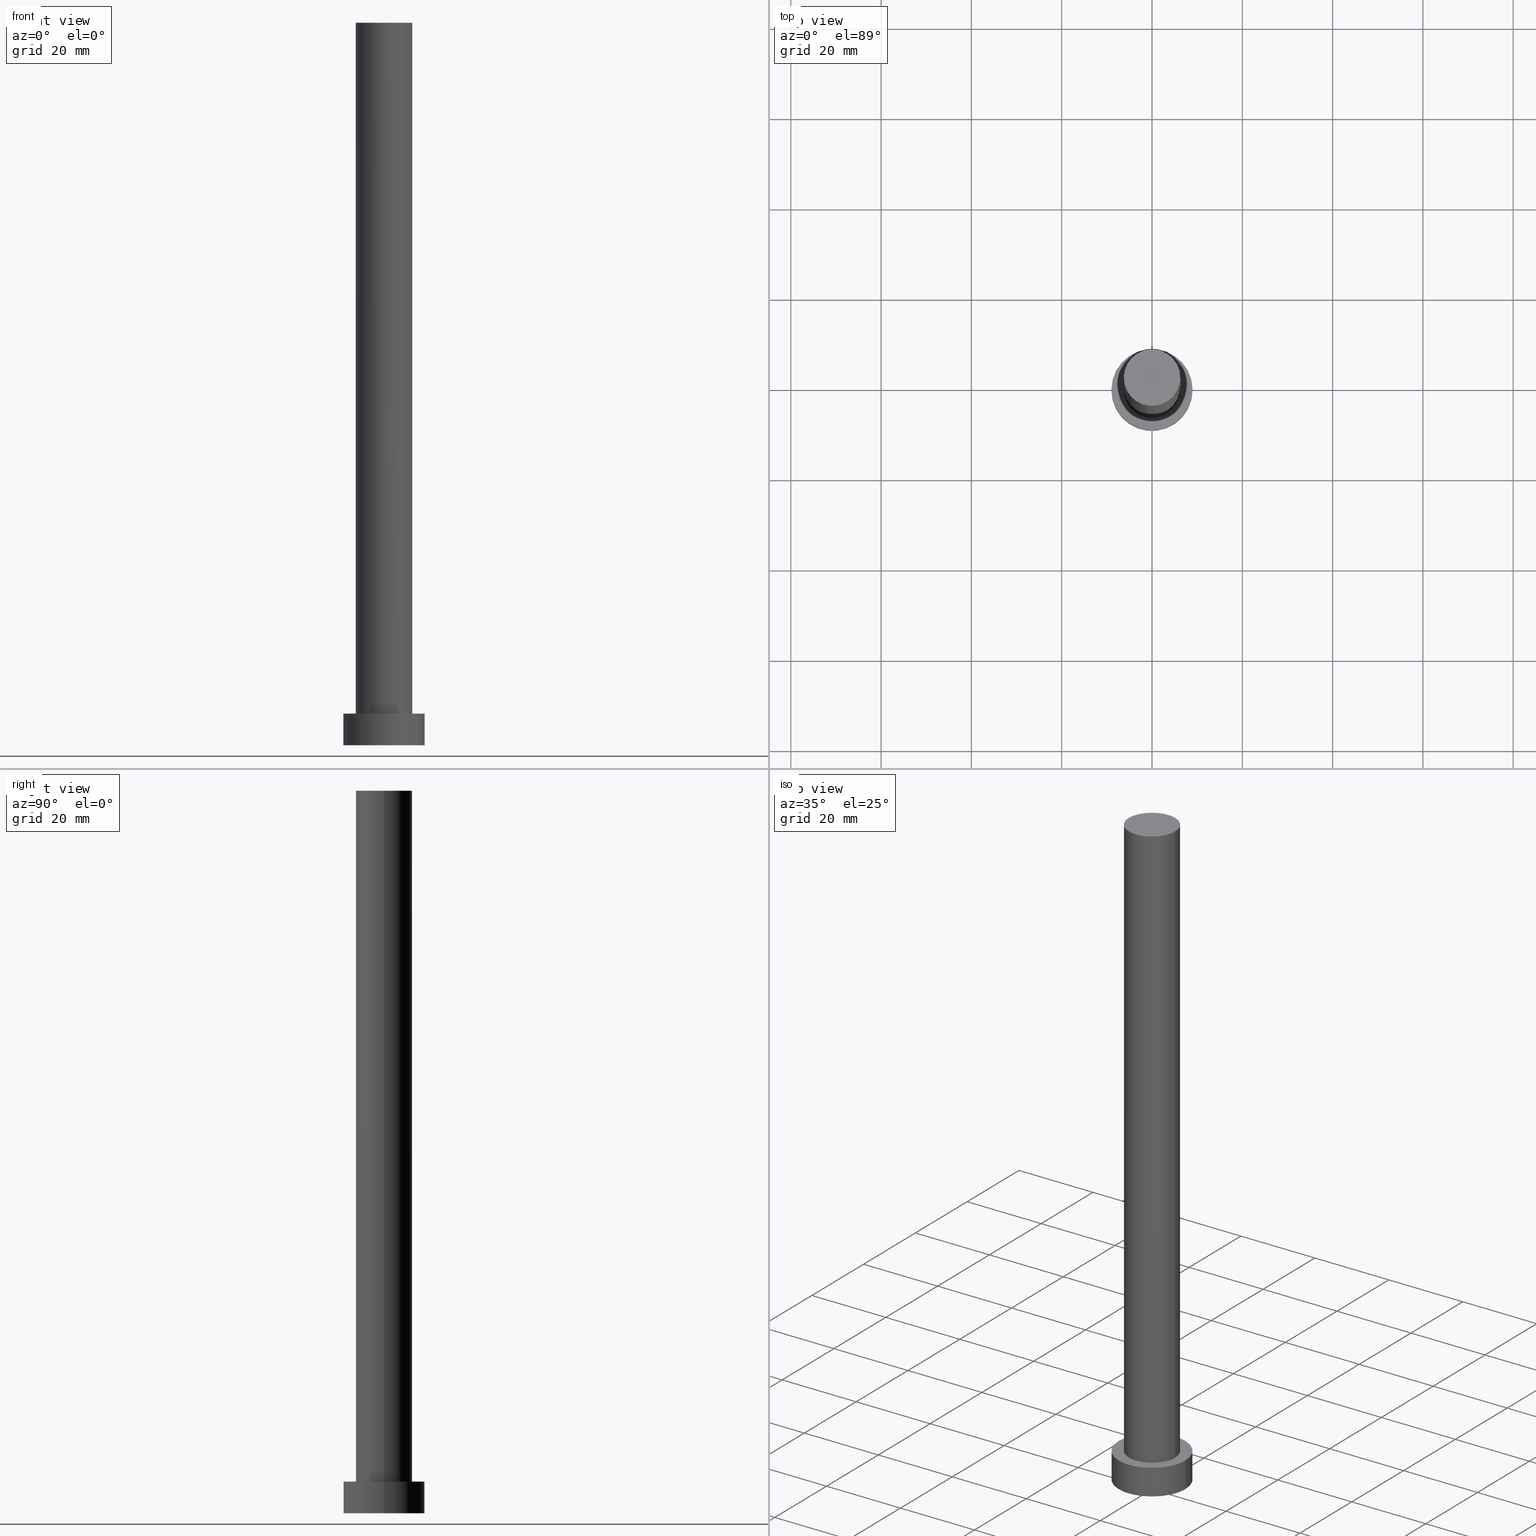
[diagram: canonical four-view strip — front | top / right | iso, engineering-drawing reading convention]
A machine part, canonical four-view strip (front | top / right | iso — engineering-drawing reading convention). The complete STEP part file that produces these views, byte-faithful:
ISO-10303-21;
HEADER;
FILE_DESCRIPTION (( 'STEP AP203' ),
    '1' );
FILE_NAME ('2bb6.STEP',
    '2026-02-06T12:36:27',
    ( '' ),
    ( '' ),
    'SwSTEP 2.0',
    'SolidWorks 2019',
    '' );
FILE_SCHEMA (( 'CONFIG_CONTROL_DESIGN' ));
ENDSEC;

DATA;
#1 = SHAPE_DEFINITION_REPRESENTATION ( #143, #161 ) ;
#2 = CARTESIAN_POINT ( 'NONE',  ( 0.000000000000000000, 0.000000000000000000, 7.000000000000000000 ) ) ;
#3 = CARTESIAN_POINT ( 'NONE',  ( 6.250000000000000000, 7.654042494670957606E-16, 160.0000000000000000 ) ) ;
#4 = PERSON_AND_ORGANIZATION ( #248, #204 ) ;
#5 = DATE_AND_TIME ( #124, #162 ) ;
#6 = APPLICATION_PROTOCOL_DEFINITION ( 'international standard', 'config_control_design', 1994, #69 ) ;
#7 = PERSON_AND_ORGANIZATION ( #248, #204 ) ;
#8 = ORIENTED_EDGE ( 'NONE', *, *, #217, .F. ) ;
#9 = DATE_AND_TIME ( #177, #68 ) ;
#10 = CYLINDRICAL_SURFACE ( 'NONE', #90, 6.250000000000000000 ) ;
#11 = ADVANCED_FACE ( 'NONE', ( #65 ), #10, .T. ) ;
#12 = FACE_OUTER_BOUND ( 'NONE', #245, .T. ) ;
#13 = CC_DESIGN_PERSON_AND_ORGANIZATION_ASSIGNMENT ( #93, #18, ( #39 ) ) ;
#14 = CARTESIAN_POINT ( 'NONE',  ( -9.000000000000000000, 0.000000000000000000, 7.000000000000000000 ) ) ;
#15 = CARTESIAN_POINT ( 'NONE',  ( 0.000000000000000000, 0.000000000000000000, 7.000000000000000000 ) ) ;
#16 = CALENDAR_DATE ( 2026, 6, 2 ) ;
#17 = DIRECTION ( 'NONE',  ( 1.000000000000000000, 0.000000000000000000, 0.000000000000000000 ) ) ;
#18 = PERSON_AND_ORGANIZATION_ROLE ( 'design_supplier' ) ;
#19 = CARTESIAN_POINT ( 'NONE',  ( 0.000000000000000000, 0.000000000000000000, 7.000000000000000000 ) ) ;
#20 = AXIS2_PLACEMENT_3D ( 'NONE', #142, #197, #242 ) ;
#21 = ORIENTED_EDGE ( 'NONE', *, *, #217, .T. ) ;
#22 = CARTESIAN_POINT ( 'NONE',  ( -6.250000000000000000, 0.000000000000000000, 160.0000000000000000 ) ) ;
#23 = ORIENTED_EDGE ( 'NONE', *, *, #250, .F. ) ;
#24 = CARTESIAN_POINT ( 'NONE',  ( 0.000000000000000000, 0.000000000000000000, 0.000000000000000000 ) ) ;
#25 = CIRCLE ( 'NONE', #55, 6.250000000000000000 ) ;
#26 = ORIENTED_EDGE ( 'NONE', *, *, #128, .F. ) ;
#27 = CIRCLE ( 'NONE', #173, 6.250000000000000000 ) ;
#28 = PLANE ( 'NONE',  #196 ) ;
#29 = CC_DESIGN_PERSON_AND_ORGANIZATION_ASSIGNMENT ( #238, #218, ( #183 ) ) ;
#30 = LINE ( 'NONE', #251, #45 ) ;
#31 = CARTESIAN_POINT ( 'NONE',  ( 0.000000000000000000, 0.000000000000000000, 7.000000000000000000 ) ) ;
#32 = DATE_AND_TIME ( #214, #139 ) ;
#33 = LINE ( 'NONE', #193, #123 ) ;
#34 = DIRECTION ( 'NONE',  ( 0.000000000000000000, 0.000000000000000000, 1.000000000000000000 ) ) ;
#35 = EDGE_CURVE ( 'NONE', #121, #222, #159, .T. ) ;
#36 = ORIENTED_EDGE ( 'NONE', *, *, #205, .F. ) ;
#37 = APPROVAL_STATUS ( 'not_yet_approved' ) ;
#38 = UNCERTAINTY_MEASURE_WITH_UNIT (LENGTH_MEASURE( 1.000000000000000082E-05 ), #63, 'distance_accuracy_value', 'NONE');
#39 = PRODUCT_DEFINITION_FORMATION_WITH_SPECIFIED_SOURCE ( 'LIBOVOLN�', '', #83, .NOT_KNOWN. ) ;
#40 = MECHANICAL_CONTEXT ( 'NONE', #69, 'mechanical' ) ;
#41 = DIRECTION ( 'NONE',  ( -1.000000000000000000, 0.000000000000000000, 0.000000000000000000 ) ) ;
#42 = ORIENTED_EDGE ( 'NONE', *, *, #52, .F. ) ;
#43 =( NAMED_UNIT ( * ) SI_UNIT ( $, .STERADIAN. ) SOLID_ANGLE_UNIT ( ) );
#44 = ORIENTED_EDGE ( 'NONE', *, *, #35, .F. ) ;
#45 = VECTOR ( 'NONE', #73, 1000.000000000000000 ) ;
#46 = LOCAL_TIME ( 13, 36, 27.00000000000000000, #116 ) ;
#47 = CC_DESIGN_DATE_AND_TIME_ASSIGNMENT ( #32, #137, ( #183 ) ) ;
#48 = DIRECTION ( 'NONE',  ( 0.000000000000000000, 0.000000000000000000, 1.000000000000000000 ) ) ;
#49 = DIRECTION ( 'NONE',  ( -1.000000000000000000, 0.000000000000000000, 0.000000000000000000 ) ) ;
#50 = DIRECTION ( 'NONE',  ( 0.000000000000000000, 0.000000000000000000, 1.000000000000000000 ) ) ;
#51 = CC_DESIGN_APPROVAL ( #60, ( #88 ) ) ;
#52 = EDGE_CURVE ( 'NONE', #121, #125, #112, .T. ) ;
#53 = COORDINATED_UNIVERSAL_TIME_OFFSET ( 1, 0, .AHEAD. ) ;
#54 = FACE_OUTER_BOUND ( 'NONE', #80, .T. ) ;
#55 = AXIS2_PLACEMENT_3D ( 'NONE', #148, #34, #129 ) ;
#56 = ORIENTED_EDGE ( 'NONE', *, *, #186, .F. ) ;
#57 = APPROVAL_ROLE ( '' ) ;
#58 = DIRECTION ( 'NONE',  ( 1.000000000000000000, 0.000000000000000000, -0.000000000000000000 ) ) ;
#59 = DIRECTION ( 'NONE',  ( 0.000000000000000000, 0.000000000000000000, 1.000000000000000000 ) ) ;
#60 = APPROVAL ( #101, 'NEUR�EN�' ) ;
#61 = ORIENTED_EDGE ( 'NONE', *, *, #250, .T. ) ;
#62 = ORIENTED_EDGE ( 'NONE', *, *, #75, .F. ) ;
#63 =( LENGTH_UNIT ( ) NAMED_UNIT ( * ) SI_UNIT ( .MILLI., .METRE. ) );
#64 = ORIENTED_EDGE ( 'NONE', *, *, #182, .F. ) ;
#65 = FACE_OUTER_BOUND ( 'NONE', #78, .T. ) ;
#66 = VECTOR ( 'NONE', #92, 1000.000000000000000 ) ;
#67 = ORIENTED_EDGE ( 'NONE', *, *, #79, .F. ) ;
#68 = LOCAL_TIME ( 13, 36, 27.00000000000000000, #103 ) ;
#69 = APPLICATION_CONTEXT ( 'configuration controlled 3d designs of mechanical parts and assemblies' ) ;
#70 = DIRECTION ( 'NONE',  ( 0.000000000000000000, 0.000000000000000000, 1.000000000000000000 ) ) ;
#71 = DIRECTION ( 'NONE',  ( 0.000000000000000000, 0.000000000000000000, 1.000000000000000000 ) ) ;
#72 = DIRECTION ( 'NONE',  ( 1.000000000000000000, 0.000000000000000000, 0.000000000000000000 ) ) ;
#73 = DIRECTION ( 'NONE',  ( -0.000000000000000000, -0.000000000000000000, -1.000000000000000000 ) ) ;
#74 = VERTEX_POINT ( 'NONE', #189 ) ;
#75 = EDGE_CURVE ( 'NONE', #200, #74, #33, .T. ) ;
#76 = SECURITY_CLASSIFICATION_LEVEL ( 'unclassified' ) ;
#77 = PLANE ( 'NONE',  #221 ) ;
#78 = EDGE_LOOP ( 'NONE', ( #115, #155, #141, #26 ) ) ;
#79 = EDGE_CURVE ( 'NONE', #74, #195, #223, .T. ) ;
#80 = EDGE_LOOP ( 'NONE', ( #21, #144 ) ) ;
#81 = CARTESIAN_POINT ( 'NONE',  ( 0.000000000000000000, 0.000000000000000000, 7.000000000000000000 ) ) ;
#82 = EDGE_LOOP ( 'NONE', ( #44, #179, #172, #240 ) ) ;
#83 = PRODUCT ( '2bb6', '2bb6', '', ( #40 ) ) ;
#84 = DATE_AND_TIME ( #16, #97 ) ;
#85 = DIRECTION ( 'NONE',  ( 1.000000000000000000, 0.000000000000000000, 0.000000000000000000 ) ) ;
#86 = FACE_OUTER_BOUND ( 'NONE', #82, .T. ) ;
#87 = EDGE_CURVE ( 'NONE', #200, #243, #25, .T. ) ;
#88 = PRODUCT_DEFINITION ( 'NEZN�M�', '', #39, #122 ) ;
#89 = CC_DESIGN_APPROVAL ( #206, ( #39 ) ) ;
#90 = AXIS2_PLACEMENT_3D ( 'NONE', #105, #199, #201 ) ;
#91 = CARTESIAN_POINT ( 'NONE',  ( 0.000000000000000000, 0.000000000000000000, 0.000000000000000000 ) ) ;
#92 = DIRECTION ( 'NONE',  ( -0.000000000000000000, -0.000000000000000000, -1.000000000000000000 ) ) ;
#93 = PERSON_AND_ORGANIZATION ( #248, #204 ) ;
#94 = CARTESIAN_POINT ( 'NONE',  ( -6.250000000000000000, 0.000000000000000000, 7.000000000000000000 ) ) ;
#95 = PERSON_AND_ORGANIZATION_ROLE ( 'creator' ) ;
#96 = DIRECTION ( 'NONE',  ( 1.000000000000000000, 0.000000000000000000, 0.000000000000000000 ) ) ;
#97 = LOCAL_TIME ( 13, 36, 27.00000000000000000, #135 ) ;
#98 = DIRECTION ( 'NONE',  ( 0.000000000000000000, 0.000000000000000000, 1.000000000000000000 ) ) ;
#99 = CC_DESIGN_PERSON_AND_ORGANIZATION_ASSIGNMENT ( #126, #202, ( #88 ) ) ;
#100 = AXIS2_PLACEMENT_3D ( 'NONE', #212, #163, #153 ) ;
#101 = APPROVAL_STATUS ( 'not_yet_approved' ) ;
#102 = ORIENTED_EDGE ( 'NONE', *, *, #158, .T. ) ;
#103 = COORDINATED_UNIVERSAL_TIME_OFFSET ( 1, 0, .AHEAD. ) ;
#104 = APPROVAL_PERSON_ORGANIZATION ( #157, #60, #119 ) ;
#105 = CARTESIAN_POINT ( 'NONE',  ( 0.000000000000000000, 0.000000000000000000, 160.0000000000000000 ) ) ;
#106 = ADVANCED_FACE ( 'NONE', ( #215 ), #134, .T. ) ;
#107 = EDGE_LOOP ( 'NONE', ( #102, #241 ) ) ;
#108 = APPLICATION_CONTEXT ( 'configuration controlled 3d designs of mechanical parts and assemblies' ) ;
#109 = CARTESIAN_POINT ( 'NONE',  ( 0.000000000000000000, 0.000000000000000000, 7.000000000000000000 ) ) ;
#110 = CARTESIAN_POINT ( 'NONE',  ( 0.000000000000000000, 0.000000000000000000, 160.0000000000000000 ) ) ;
#111 = DIRECTION ( 'NONE',  ( 0.000000000000000000, 0.000000000000000000, 1.000000000000000000 ) ) ;
#112 = CIRCLE ( 'NONE', #232, 9.000000000000000000 ) ;
#113 = APPROVAL_STATUS ( 'not_yet_approved' ) ;
#114 = DIRECTION ( 'NONE',  ( -0.000000000000000000, -0.000000000000000000, -1.000000000000000000 ) ) ;
#115 = ORIENTED_EDGE ( 'NONE', *, *, #87, .F. ) ;
#116 = COORDINATED_UNIVERSAL_TIME_OFFSET ( 1, 0, .AHEAD. ) ;
#117 = CARTESIAN_POINT ( 'NONE',  ( -9.000000000000000000, 0.000000000000000000, 7.000000000000000000 ) ) ;
#118 = CALENDAR_DATE ( 2026, 6, 2 ) ;
#119 = APPROVAL_ROLE ( '' ) ;
#120 = ORIENTED_EDGE ( 'NONE', *, *, #128, .T. ) ;
#121 = VERTEX_POINT ( 'NONE', #231 ) ;
#122 = DESIGN_CONTEXT ( 'detailed design', #108, 'design' ) ;
#123 = VECTOR ( 'NONE', #131, 1000.000000000000000 ) ;
#124 = CALENDAR_DATE ( 2026, 6, 2 ) ;
#125 = VERTEX_POINT ( 'NONE', #117 ) ;
#126 = PERSON_AND_ORGANIZATION ( #248, #204 ) ;
#127 = CC_DESIGN_DATE_AND_TIME_ASSIGNMENT ( #9, #133, ( #88 ) ) ;
#128 = EDGE_CURVE ( 'NONE', #243, #195, #30, .T. ) ;
#129 = DIRECTION ( 'NONE',  ( 1.000000000000000000, 0.000000000000000000, 0.000000000000000000 ) ) ;
#130 = CIRCLE ( 'NONE', #209, 6.250000000000000000 ) ;
#131 = DIRECTION ( 'NONE',  ( -0.000000000000000000, -0.000000000000000000, -1.000000000000000000 ) ) ;
#132 = CC_DESIGN_PERSON_AND_ORGANIZATION_ASSIGNMENT ( #235, #95, ( #39 ) ) ;
#133 = DATE_TIME_ROLE ( 'creation_date' ) ;
#134 = CYLINDRICAL_SURFACE ( 'NONE', #187, 9.000000000000000000 ) ;
#135 = COORDINATED_UNIVERSAL_TIME_OFFSET ( 1, 0, .AHEAD. ) ;
#136 = CARTESIAN_POINT ( 'NONE',  ( 9.000000000000000000, 1.102182119232617714E-15, 0.000000000000000000 ) ) ;
#137 = DATE_TIME_ROLE ( 'classification_date' ) ;
#138 = FACE_OUTER_BOUND ( 'NONE', #181, .T. ) ;
#139 = LOCAL_TIME ( 13, 36, 27.00000000000000000, #53 ) ;
#140 = APPROVAL_DATE_TIME ( #84, #206 ) ;
#141 = ORIENTED_EDGE ( 'NONE', *, *, #79, .T. ) ;
#142 = CARTESIAN_POINT ( 'NONE',  ( 0.000000000000000000, 0.000000000000000000, 0.000000000000000000 ) ) ;
#143 = PRODUCT_DEFINITION_SHAPE ( 'NONE', 'NONE',  #88 ) ;
#144 = ORIENTED_EDGE ( 'NONE', *, *, #87, .T. ) ;
#145 = APPROVAL_PERSON_ORGANIZATION ( #4, #228, #57 ) ;
#146 = AXIS2_PLACEMENT_3D ( 'NONE', #2, #98, #72 ) ;
#147 = CC_DESIGN_PERSON_AND_ORGANIZATION_ASSIGNMENT ( #7, #175, ( #83 ) ) ;
#148 = CARTESIAN_POINT ( 'NONE',  ( 0.000000000000000000, 0.000000000000000000, 160.0000000000000000 ) ) ;
#149 = CIRCLE ( 'NONE', #146, 9.000000000000000000 ) ;
#150 = DIRECTION ( 'NONE',  ( 1.000000000000000000, 0.000000000000000000, -0.000000000000000000 ) ) ;
#151 = PERSON_AND_ORGANIZATION ( #248, #204 ) ;
#152 = DIRECTION ( 'NONE',  ( -0.000000000000000000, -0.000000000000000000, -1.000000000000000000 ) ) ;
#153 = DIRECTION ( 'NONE',  ( 1.000000000000000000, 0.000000000000000000, 0.000000000000000000 ) ) ;
#154 = DIRECTION ( 'NONE',  ( -0.000000000000000000, -0.000000000000000000, -1.000000000000000000 ) ) ;
#155 = ORIENTED_EDGE ( 'NONE', *, *, #75, .T. ) ;
#156 = DIRECTION ( 'NONE',  ( -0.000000000000000000, -0.000000000000000000, -1.000000000000000000 ) ) ;
#157 = PERSON_AND_ORGANIZATION ( #248, #204 ) ;
#158 = EDGE_CURVE ( 'NONE', #125, #121, #149, .T. ) ;
#159 = LINE ( 'NONE', #171, #237 ) ;
#160 = MANIFOLD_SOLID_BREP ( 'P�idat vysunut�m3', #252 ) ;
#161 = ADVANCED_BREP_SHAPE_REPRESENTATION ( '2bb6', ( #160, #178 ), #247 ) ;
#162 = LOCAL_TIME ( 13, 36, 27.00000000000000000, #224 ) ;
#163 = DIRECTION ( 'NONE',  ( 0.000000000000000000, 0.000000000000000000, 1.000000000000000000 ) ) ;
#164 = AXIS2_PLACEMENT_3D ( 'NONE', #188, #154, #49 ) ;
#165 = PLANE ( 'NONE',  #184 ) ;
#166 = DIRECTION ( 'NONE',  ( 0.000000000000000000, 0.000000000000000000, 1.000000000000000000 ) ) ;
#167 = APPROVAL_DATE_TIME ( #191, #228 ) ;
#168 = CARTESIAN_POINT ( 'NONE',  ( 0.000000000000000000, 0.000000000000000000, 7.000000000000000000 ) ) ;
#169 = ORIENTED_EDGE ( 'NONE', *, *, #182, .T. ) ;
#170 = APPROVAL_PERSON_ORGANIZATION ( #151, #206, #174 ) ;
#171 = CARTESIAN_POINT ( 'NONE',  ( 9.000000000000000000, 1.102182119232617714E-15, 7.000000000000000000 ) ) ;
#172 = ORIENTED_EDGE ( 'NONE', *, *, #186, .T. ) ;
#173 = AXIS2_PLACEMENT_3D ( 'NONE', #19, #48, #213 ) ;
#174 = APPROVAL_ROLE ( '' ) ;
#175 = PERSON_AND_ORGANIZATION_ROLE ( 'design_owner' ) ;
#176 = PRODUCT_RELATED_PRODUCT_CATEGORY ( 'detail', '', ( #83 ) ) ;
#177 = CALENDAR_DATE ( 2026, 6, 2 ) ;
#178 = AXIS2_PLACEMENT_3D ( 'NONE', #24, #59, #85 ) ;
#179 = ORIENTED_EDGE ( 'NONE', *, *, #158, .F. ) ;
#180 = APPLICATION_PROTOCOL_DEFINITION ( 'international standard', 'config_control_design', 1994, #108 ) ;
#181 = EDGE_LOOP ( 'NONE', ( #62, #8, #120, #169 ) ) ;
#182 = EDGE_CURVE ( 'NONE', #195, #74, #27, .T. ) ;
#183 = SECURITY_CLASSIFICATION ( '', '', #76 ) ;
#184 = AXIS2_PLACEMENT_3D ( 'NONE', #91, #166, #216 ) ;
#185 = EDGE_LOOP ( 'NONE', ( #64, #67 ) ) ;
#186 = EDGE_CURVE ( 'NONE', #125, #194, #192, .T. ) ;
#187 = AXIS2_PLACEMENT_3D ( 'NONE', #15, #114, #254 ) ;
#188 = CARTESIAN_POINT ( 'NONE',  ( 0.000000000000000000, 0.000000000000000000, 160.0000000000000000 ) ) ;
#189 = CARTESIAN_POINT ( 'NONE',  ( 6.250000000000000000, 7.654042494670957606E-16, 7.000000000000000000 ) ) ;
#190 = CARTESIAN_POINT ( 'NONE',  ( -9.000000000000000000, 0.000000000000000000, 0.000000000000000000 ) ) ;
#191 = DATE_AND_TIME ( #118, #46 ) ;
#192 = LINE ( 'NONE', #14, #66 ) ;
#193 = CARTESIAN_POINT ( 'NONE',  ( 6.250000000000000000, 7.654042494670957606E-16, 160.0000000000000000 ) ) ;
#194 = VERTEX_POINT ( 'NONE', #190 ) ;
#195 = VERTEX_POINT ( 'NONE', #94 ) ;
#196 = AXIS2_PLACEMENT_3D ( 'NONE', #109, #70, #58 ) ;
#197 = DIRECTION ( 'NONE',  ( 0.000000000000000000, 0.000000000000000000, 1.000000000000000000 ) ) ;
#198 = ADVANCED_FACE ( 'NONE', ( #12 ), #165, .F. ) ;
#199 = DIRECTION ( 'NONE',  ( -0.000000000000000000, -0.000000000000000000, -1.000000000000000000 ) ) ;
#200 = VERTEX_POINT ( 'NONE', #3 ) ;
#201 = DIRECTION ( 'NONE',  ( -1.000000000000000000, 0.000000000000000000, 0.000000000000000000 ) ) ;
#202 = PERSON_AND_ORGANIZATION_ROLE ( 'creator' ) ;
#203 =( NAMED_UNIT ( * ) PLANE_ANGLE_UNIT ( ) SI_UNIT ( $, .RADIAN. ) );
#204 = ORGANIZATION ( 'NEUR�EN�', 'NEUR�EN�', '' ) ;
#205 = EDGE_CURVE ( 'NONE', #194, #222, #211, .T. ) ;
#206 = APPROVAL ( #37, 'NEUR�EN�' ) ;
#207 = ORIENTED_EDGE ( 'NONE', *, *, #35, .T. ) ;
#208 = CC_DESIGN_APPROVAL ( #228, ( #183 ) ) ;
#209 = AXIS2_PLACEMENT_3D ( 'NONE', #255, #71, #236 ) ;
#210 = FACE_OUTER_BOUND ( 'NONE', #107, .T. ) ;
#211 = CIRCLE ( 'NONE', #100, 9.000000000000000000 ) ;
#212 = CARTESIAN_POINT ( 'NONE',  ( 0.000000000000000000, 0.000000000000000000, 0.000000000000000000 ) ) ;
#213 = DIRECTION ( 'NONE',  ( 1.000000000000000000, 0.000000000000000000, 0.000000000000000000 ) ) ;
#214 = CALENDAR_DATE ( 2026, 6, 2 ) ;
#215 = FACE_OUTER_BOUND ( 'NONE', #225, .T. ) ;
#216 = DIRECTION ( 'NONE',  ( 1.000000000000000000, 0.000000000000000000, -0.000000000000000000 ) ) ;
#217 = EDGE_CURVE ( 'NONE', #243, #200, #130, .T. ) ;
#218 = PERSON_AND_ORGANIZATION_ROLE ( 'classification_officer' ) ;
#219 = ADVANCED_FACE ( 'NONE', ( #54 ), #77, .T. ) ;
#220 = CC_DESIGN_SECURITY_CLASSIFICATION ( #183, ( #39 ) ) ;
#221 = AXIS2_PLACEMENT_3D ( 'NONE', #110, #50, #150 ) ;
#222 = VERTEX_POINT ( 'NONE', #136 ) ;
#223 = CIRCLE ( 'NONE', #249, 6.250000000000000000 ) ;
#224 = COORDINATED_UNIVERSAL_TIME_OFFSET ( 1, 0, .AHEAD. ) ;
#225 = EDGE_LOOP ( 'NONE', ( #42, #207, #61, #56 ) ) ;
#226 = APPROVAL_DATE_TIME ( #5, #60 ) ;
#227 = ADVANCED_FACE ( 'NONE', ( #138 ), #233, .T. ) ;
#228 = APPROVAL ( #113, 'NEUR�EN�' ) ;
#229 = ADVANCED_FACE ( 'NONE', ( #239, #210 ), #28, .T. ) ;
#230 = AXIS2_PLACEMENT_3D ( 'NONE', #81, #156, #41 ) ;
#231 = CARTESIAN_POINT ( 'NONE',  ( 9.000000000000000000, 1.102182119232617714E-15, 7.000000000000000000 ) ) ;
#232 = AXIS2_PLACEMENT_3D ( 'NONE', #31, #111, #17 ) ;
#233 = CYLINDRICAL_SURFACE ( 'NONE', #164, 6.250000000000000000 ) ;
#234 = DIRECTION ( 'NONE',  ( 0.000000000000000000, 0.000000000000000000, 1.000000000000000000 ) ) ;
#235 = PERSON_AND_ORGANIZATION ( #248, #204 ) ;
#236 = DIRECTION ( 'NONE',  ( 1.000000000000000000, 0.000000000000000000, 0.000000000000000000 ) ) ;
#237 = VECTOR ( 'NONE', #152, 1000.000000000000000 ) ;
#238 = PERSON_AND_ORGANIZATION ( #248, #204 ) ;
#239 = FACE_BOUND ( 'NONE', #185, .T. ) ;
#240 = ORIENTED_EDGE ( 'NONE', *, *, #205, .T. ) ;
#241 = ORIENTED_EDGE ( 'NONE', *, *, #52, .T. ) ;
#242 = DIRECTION ( 'NONE',  ( 1.000000000000000000, 0.000000000000000000, 0.000000000000000000 ) ) ;
#243 = VERTEX_POINT ( 'NONE', #22 ) ;
#244 = CYLINDRICAL_SURFACE ( 'NONE', #230, 9.000000000000000000 ) ;
#245 = EDGE_LOOP ( 'NONE', ( #36, #23 ) ) ;
#246 = CIRCLE ( 'NONE', #20, 9.000000000000000000 ) ;
#247 =( GEOMETRIC_REPRESENTATION_CONTEXT ( 3 ) GLOBAL_UNCERTAINTY_ASSIGNED_CONTEXT ( ( #38 ) ) GLOBAL_UNIT_ASSIGNED_CONTEXT ( ( #63, #203, #43 ) ) REPRESENTATION_CONTEXT ( 'NONE', 'WORKASPACE' ) );
#248 = PERSON ( 'NEUR�EN�', 'NEUR�EN�', 'NEUR�EN�', ('NEUR�EN�'), ('NEUR�EN�'), ('NEUR�EN�') ) ;
#249 = AXIS2_PLACEMENT_3D ( 'NONE', #168, #234, #96 ) ;
#250 = EDGE_CURVE ( 'NONE', #222, #194, #246, .T. ) ;
#251 = CARTESIAN_POINT ( 'NONE',  ( -6.250000000000000000, 0.000000000000000000, 160.0000000000000000 ) ) ;
#252 = CLOSED_SHELL ( 'NONE', ( #11, #106, #253, #229, #198, #227, #219 ) ) ;
#253 = ADVANCED_FACE ( 'NONE', ( #86 ), #244, .T. ) ;
#254 = DIRECTION ( 'NONE',  ( -1.000000000000000000, 0.000000000000000000, 0.000000000000000000 ) ) ;
#255 = CARTESIAN_POINT ( 'NONE',  ( 0.000000000000000000, 0.000000000000000000, 160.0000000000000000 ) ) ;
ENDSEC;
END-ISO-10303-21;
